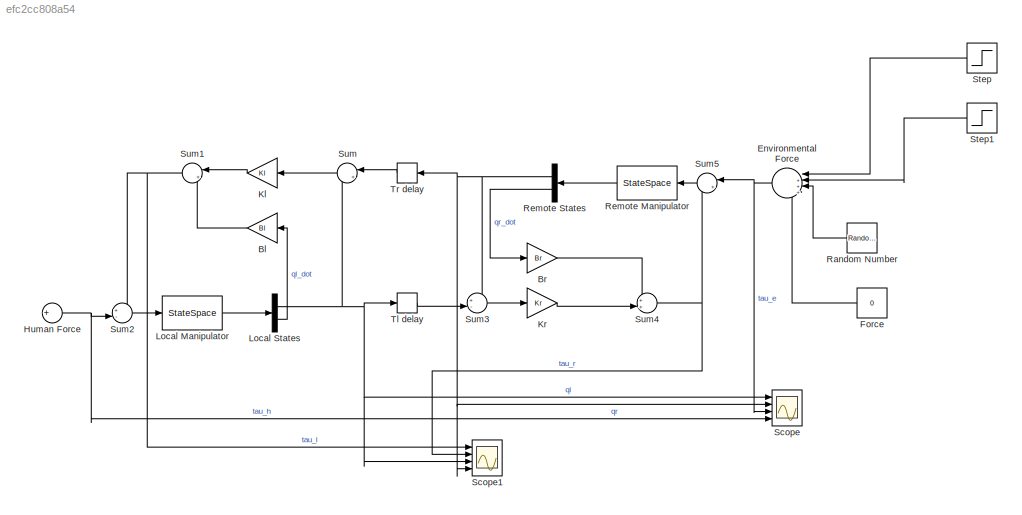
MODEL slx_efc2cc808a54
KIND model
CONFIG AbsTol = auto
CONFIG EnableMultiTasking = off
CONFIG FixedStep = auto
CONFIG MaxStep = auto
CONFIG MinStep = auto
CONFIG RelTol = 1e-3
CONFIG SampleTimeConstraint = Unconstrained
CONFIG SolverName = VariableStepAuto
CONFIG StartTime = 0.0
CONFIG StopTime = 200
BLOCK [Gain] Bl
  Gain = Bl
BLOCK [Gain] Br
  Gain = Br
BLOCK [Sum] Environmental Force
  Inputs = |++++
  NameLocation = top
  Ports = [4, 1]
BLOCK [Constant] Force
  Value = 0
BLOCK [Sum] Human Force
  Inputs = +|
  Ports = [1, 1]
BLOCK [Gain] Kl
  Gain = Kl
BLOCK [Gain] Kr
  Gain = Kr
BLOCK [StateSpace] Local Manipulator
  A = A
  B = B
  C = C
  D = D
  InitialCondition = 0
  Ports = [1, 1]
BLOCK [Demux] Local States
  Outputs = 2
  Ports = [1, 2]
BLOCK [RandomNumber] Random Number
  SampleTime = 0.1
  Seed = 6
  Variance = 2
BLOCK [StateSpace] Remote Manipulator
  A = A1
  B = B1
  C = C1
  D = D1
  InitialCondition = 0
  Ports = [1, 1]
BLOCK [Demux] Remote States
  Outputs = 2
  Ports = [1, 2]
BLOCK [Scope] Scope
  Floating = off
  NumInputPorts = 4
  Ports = [4]
  ScopeSpecificationString = Simulink.scopes.TimeScopeBlockCfg('CurrentConfiguration', extmgr.ConfigurationSet(extmgr.Configuration('Core','General UI',true),extmgr.Configuration('Core','Source UI',true),extmgr.Configuration('Sources','WiredSimulink',true),extmgr.Configuration('Visuals','Time Domain',true,'SerializedDisplays',{struct('MinYLimReal','-61.02035','MaxYLimReal','549.18315','YLabelReal','','MinYLimMag','0.00000','M...<+1425ch>
BLOCK [Scope] Scope1
  Floating = off
  NumInputPorts = 4
  Ports = [4]
  ScopeSpecificationString = Simulink.scopes.TimeScopeBlockCfg('CurrentConfiguration', extmgr.ConfigurationSet(extmgr.Configuration('Core','General UI',true),extmgr.Configuration('Core','Source UI',true),extmgr.Configuration('Sources','WiredSimulink',true,'DataLoggingVariableName','ScopeData1'),extmgr.Configuration('Visuals','Time Domain',true,'SerializedDisplays',{struct('MinYLimReal','-5.02902','MaxYLimReal','30.51631','YLa...<+1458ch>
BLOCK [Step] Step
  After = stp
  SampleTime = 0
  Time = stp_start
BLOCK [Step] Step1
  After = -stp
  SampleTime = 0
  Time = stp_end
BLOCK [Sum] Sum
  Inputs = |+-
  Ports = [2, 1]
BLOCK [Sum] Sum1
  Inputs = |+-
  Ports = [2, 1]
BLOCK [Sum] Sum2
  Inputs = +-|
  Ports = [2, 1]
BLOCK [Sum] Sum3
  Inputs = +-|
  Ports = [2, 1]
BLOCK [Sum] Sum4
  Inputs = ++|
  Ports = [2, 1]
BLOCK [Sum] Sum5
  Inputs = |+-
  Ports = [2, 1]
BLOCK [TransportDelay] Tl delay
  DelayTime = Tl
  Ports = [1, 1]
BLOCK [TransportDelay] Tr delay
  DelayTime = Tr
  Ports = [1, 1]
LINE Bl:1 -> Sum1:2
LINE Br:1 -> Sum4:1
NET Environmental Force:1 -> Scope:3, Sum5:1
LINE Force:1 -> Environmental Force:4
NET Human Force:1 -> Scope:4, Sum2:2
LINE Kl:1 -> Sum1:1
LINE Kr:1 -> Sum4:2
LINE Local Manipulator:1 -> Local States:1
NET Local States:1 -> Scope1:3, Scope:1, Sum:2, Tl delay:1
LINE Local States:2 -> Bl:1
LINE Random Number:1 -> Environmental Force:3
LINE Remote Manipulator:1 -> Remote States:1
NET Remote States:1 -> Scope1:4, Scope:2, Sum3:1, Tr delay:1
LINE Remote States:2 -> Br:1
LINE Step1:1 -> Environmental Force:2
LINE Step:1 -> Environmental Force:1
NET Sum1:1 -> Scope1:1, Sum2:1
LINE Sum2:1 -> Local Manipulator:1
LINE Sum3:1 -> Kr:1
NET Sum4:1 -> Scope1:2, Sum5:2
LINE Sum5:1 -> Remote Manipulator:1
LINE Sum:1 -> Kl:1
LINE Tl delay:1 -> Sum3:2
LINE Tr delay:1 -> Sum:1
note: NET lines group one-source signal fan-out (src -> all destinations, sorted); 1:1 wires keep LINE
